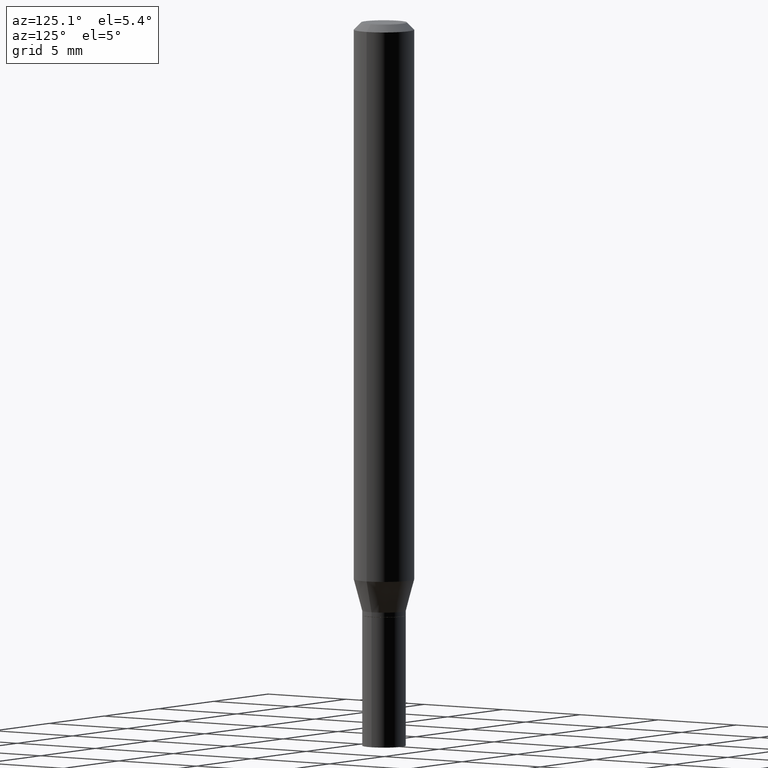
[diagram: clean part render]
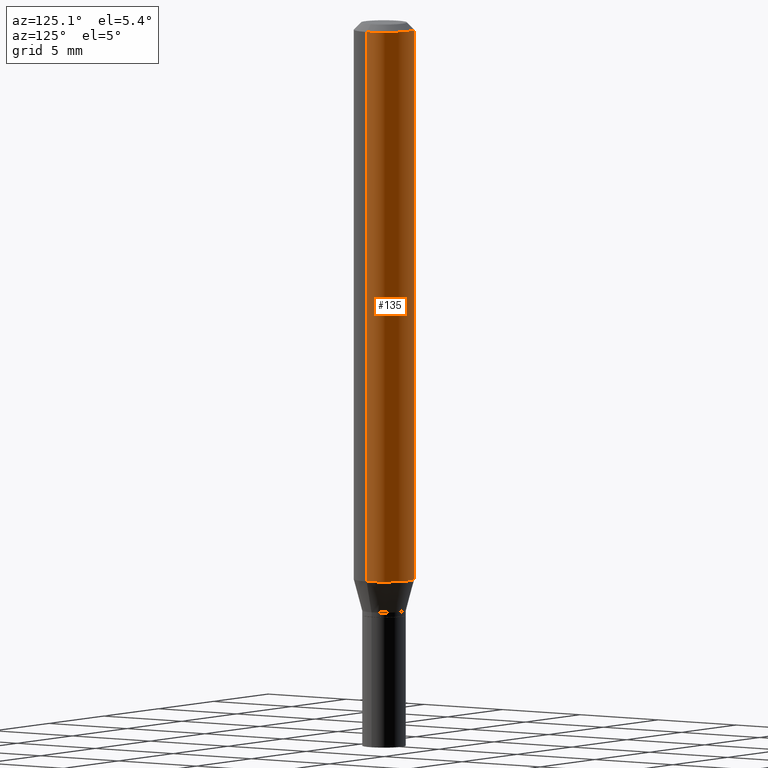
[diagram: same view with one face highlighted and labeled with its STEP entity id]
A machine part, auxiliary view. The second image highlights one B-rep face of the part: STEP entity #135.
In plain terms, the highlighted cylindrical surface (edge-blend (fillet) strip) has radius 1.5875 mm, axis along (-0, 0, 1).
Its self-contained STEP definition (entity closure, byte-faithful):
#17 = LINE ( 'NONE', #228, #76 ) ;
#47 = VECTOR ( 'NONE', #184, 39.37007874015748143 ) ;
#70 = VERTEX_POINT ( 'NONE', #435 ) ;
#75 = AXIS2_PLACEMENT_3D ( 'NONE', #80, #118, #440 ) ;
#76 = VECTOR ( 'NONE', #371, 39.37007874015748143 ) ;
#78 = FACE_OUTER_BOUND ( 'NONE', #168, .T. ) ;
#80 = CARTESIAN_POINT ( 'NONE',  ( 0.000000000000000000, 0.000000000000000000, 0.000000000000000000 ) ) ;
#105 = DIRECTION ( 'NONE',  ( 1.000000000000000000, -6.982962677686270655E-15, 0.000000000000000000 ) ) ;
#107 = CARTESIAN_POINT ( 'NONE',  ( 0.06250000000000000000, -4.888073874380388472E-16, -0.01499999999999999944 ) ) ;
#110 = VERTEX_POINT ( 'NONE', #115 ) ;
#115 = CARTESIAN_POINT ( 'NONE',  ( -0.06250000000000000000, -3.587486272909356218E-15, -1.154689110867545443 ) ) ;
#118 = DIRECTION ( 'NONE',  ( -2.445468806185136597E-29, 3.491481338843145583E-15, 1.000000000000000000 ) ) ;
#119 = EDGE_CURVE ( 'NONE', #110, #70, #323, .T. ) ;
#130 = CARTESIAN_POINT ( 'NONE',  ( 3.668203209277705088E-31, -5.237222008264718399E-17, -0.01499999999999999944 ) ) ;
#135 = ADVANCED_FACE ( 'NONE', ( #78 ), #396, .T. ) ;
#157 = AXIS2_PLACEMENT_3D ( 'NONE', #130, #442, #328 ) ;
#168 = EDGE_LOOP ( 'NONE', ( #456, #342, #229, #344 ) ) ;
#179 = EDGE_CURVE ( 'NONE', #389, #70, #382, .T. ) ;
#184 = DIRECTION ( 'NONE',  ( -2.445468806185136877E-29, 3.491481338843145188E-15, 1.000000000000000000 ) ) ;
#199 = CARTESIAN_POINT ( 'NONE',  ( 0.06250000000000000000, -4.468010650114809714E-15, -1.154689110867545443 ) ) ;
#228 = CARTESIAN_POINT ( 'NONE',  ( 0.06250000000000000000, -4.364351673553916694E-16, 3.047610484872459871E-30 ) ) ;
#229 = ORIENTED_EDGE ( 'NONE', *, *, #179, .F. ) ;
#259 = CIRCLE ( 'NONE', #278, 0.06250000000000000000 ) ;
#278 = AXIS2_PLACEMENT_3D ( 'NONE', #307, #458, #105 ) ;
#298 = EDGE_CURVE ( 'NONE', #457, #389, #17, .T. ) ;
#307 = CARTESIAN_POINT ( 'NONE',  ( 2.823756201468233313E-29, -4.031575482759418834E-15, -1.154689110867545443 ) ) ;
#323 = LINE ( 'NONE', #400, #47 ) ;
#328 = DIRECTION ( 'NONE',  ( 1.000000000000000000, -6.982962677686266711E-15, 0.000000000000000000 ) ) ;
#342 = ORIENTED_EDGE ( 'NONE', *, *, #119, .T. ) ;
#344 = ORIENTED_EDGE ( 'NONE', *, *, #298, .F. ) ;
#371 = DIRECTION ( 'NONE',  ( -2.445468806185136877E-29, 3.491481338843145188E-15, 1.000000000000000000 ) ) ;
#382 = CIRCLE ( 'NONE', #157, 0.06250000000000000000 ) ;
#389 = VERTEX_POINT ( 'NONE', #107 ) ;
#396 = CYLINDRICAL_SURFACE ( 'NONE', #75, 0.06250000000000000000 ) ;
#400 = CARTESIAN_POINT ( 'NONE',  ( -0.06250000000000000000, 4.440892098500626162E-16, -3.074334431409316114E-30 ) ) ;
#435 = CARTESIAN_POINT ( 'NONE',  ( -0.06250000000000000000, -1.597884641570970340E-15, -0.01499999999999999944 ) ) ;
#440 = DIRECTION ( 'NONE',  ( 1.000000000000000000, -6.982962677686266711E-15, 4.876176775795935793E-29 ) ) ;
#442 = DIRECTION ( 'NONE',  ( -2.445468806185136597E-29, 3.491481338843145583E-15, 1.000000000000000000 ) ) ;
#443 = EDGE_CURVE ( 'NONE', #457, #110, #259, .T. ) ;
#456 = ORIENTED_EDGE ( 'NONE', *, *, #443, .T. ) ;
#457 = VERTEX_POINT ( 'NONE', #199 ) ;
#458 = DIRECTION ( 'NONE',  ( -2.445468806185136597E-29, 3.491481338843145583E-15, 1.000000000000000000 ) ) ;